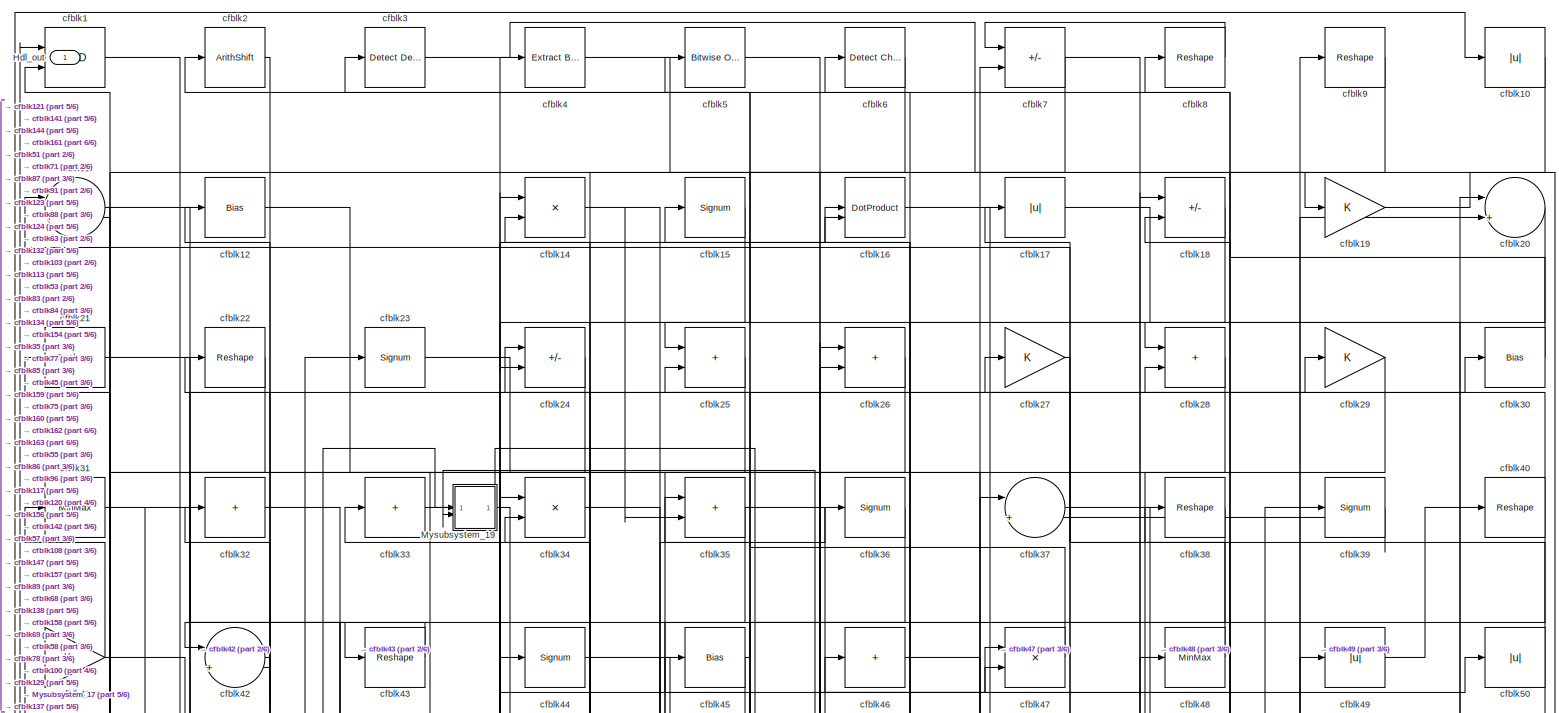
[diagram: root canvas - part 1/6, full width, top band]
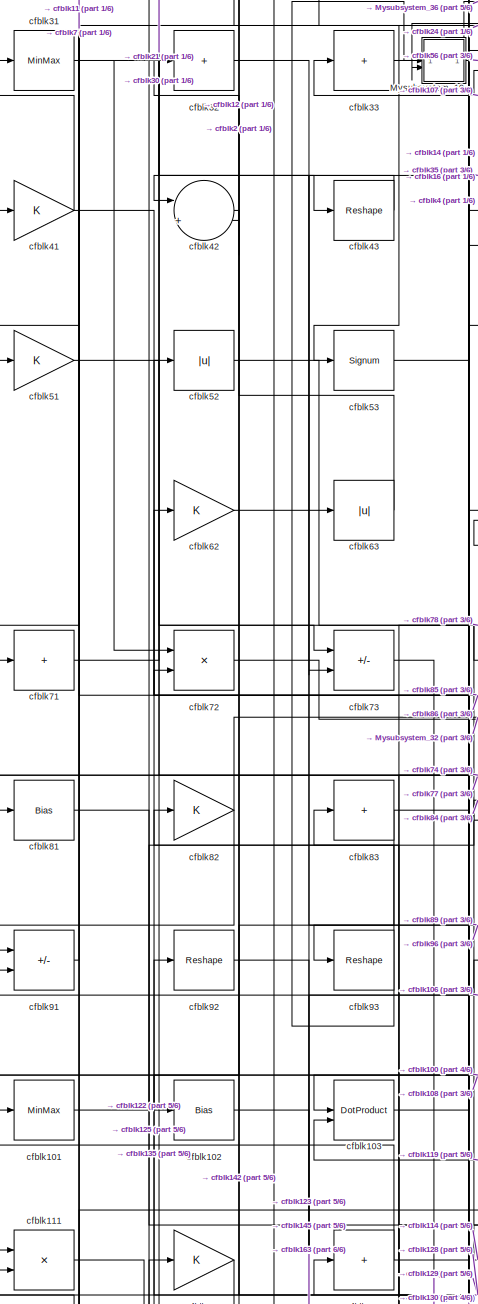
[diagram: root canvas - part 2/6, middle left region]
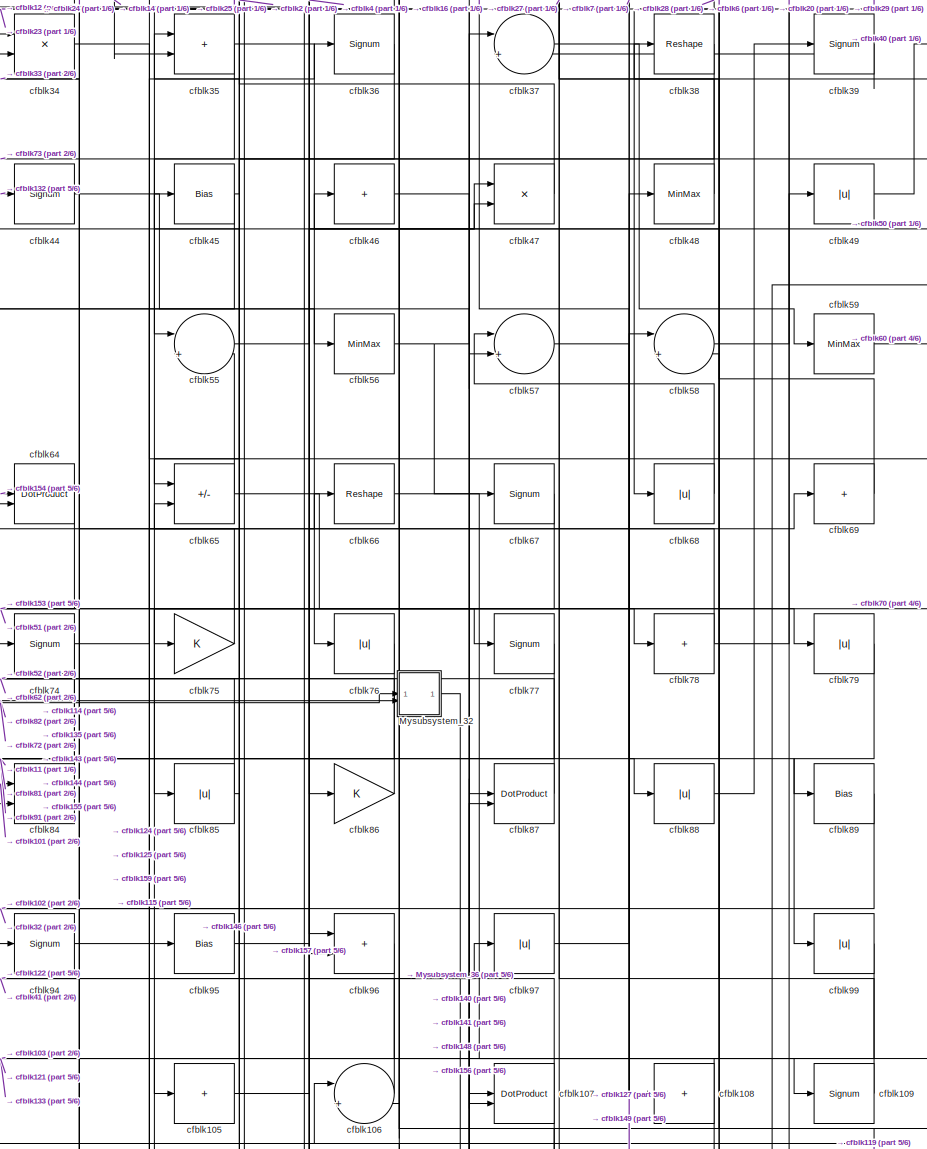
[diagram: root canvas - part 3/6, central region]
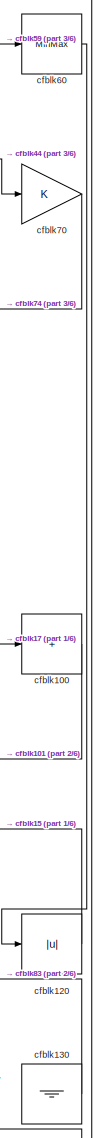
[diagram: root canvas - part 4/6, middle right region]
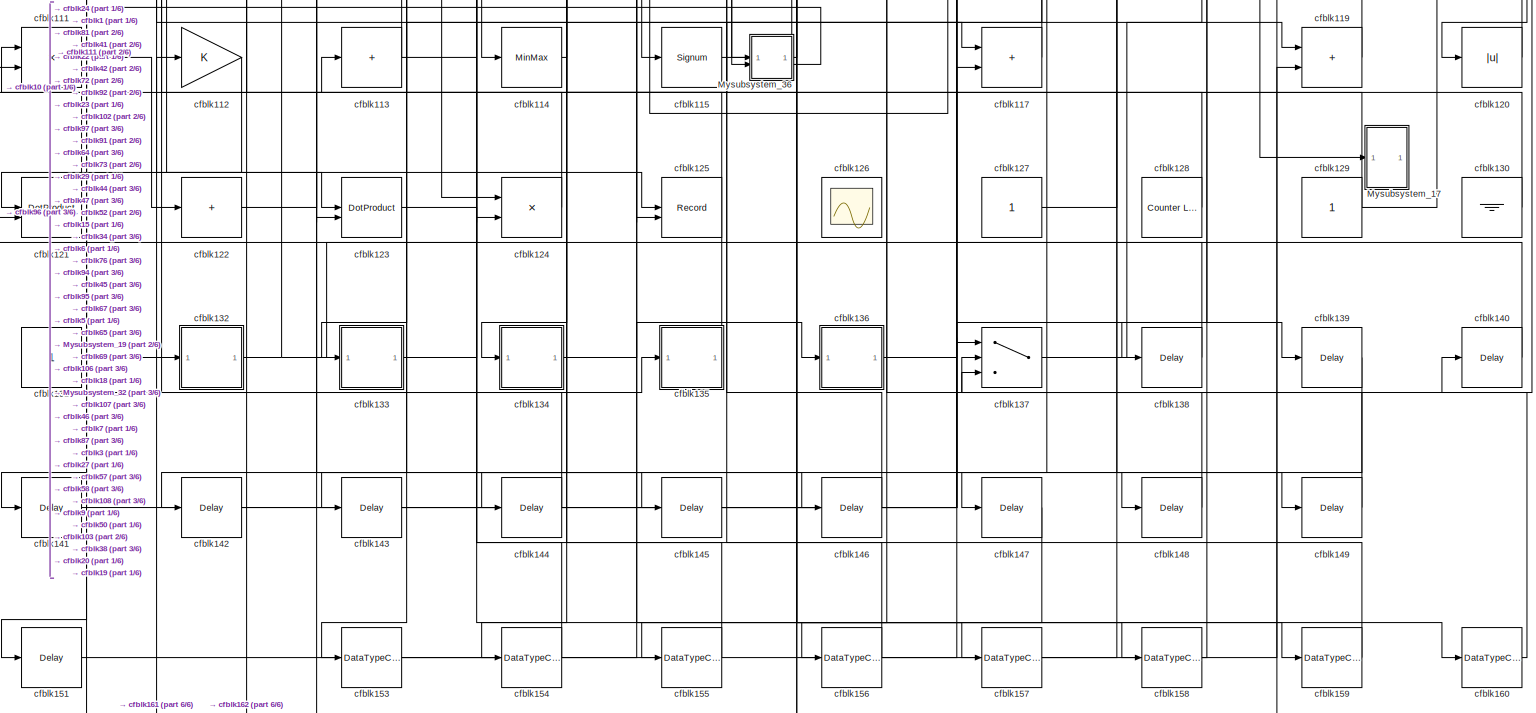
[diagram: root canvas - part 5/6, full width, bottom band]
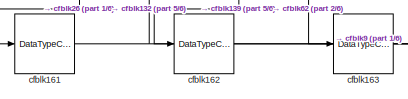
[diagram: root canvas - part 6/6, bottom left region]
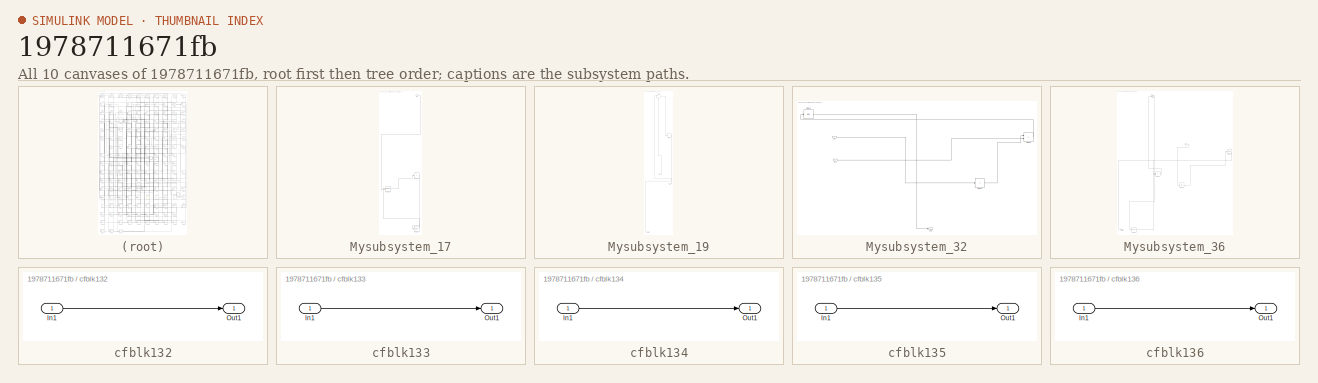
[diagram: thumbnail index - all 10 canvases of the model, root first then tree order]
MODEL slx_1978711671fb
KIND model
CONFIG AbsTol = auto
CONFIG EnableMultiTasking = off
CONFIG FixedStep = auto
CONFIG MaxStep = auto
CONFIG MinStep = auto
CONFIG RelTol = 1e-3
CONFIG SampleTimeConstraint = Unconstrained
CONFIG SolverName = VariableStepAuto
CONFIG StartTime = 0.0
CONFIG StopTime = 10.0
BLOCK [Outport] Hdl_out
  OutDataTypeStr = uint8
BLOCK [SubSystem] Mysubsystem_17
  RTWFcnName = Mysubsystem_17
  RTWFcnNameOpts = User specified
  RTWFileNameOpts = Use function name
  RTWSystemCode = Reusable function
  TreatAsAtomicUnit = on
BLOCK [Inport] Mysubsystem_17/In1
BLOCK [Sum] Mysubsystem_17/cfblk110
  IconShape = rectangular
  Inputs = +
BLOCK [DotProduct] Mysubsystem_17/cfblk118
  OutDataTypeStr = Inherit: Inherit via internal rule
BLOCK [Delay] Mysubsystem_17/cfblk150
  InputPortMap = u0
  SampleTime = 1
BLOCK [SubSystem] Mysubsystem_19
  RTWFcnName = Mysubsystem_19
  RTWFcnNameOpts = User specified
  RTWFileNameOpts = Use function name
  RTWSystemCode = Reusable function
  TreatAsAtomicUnit = on
BLOCK [Inport] Mysubsystem_19/In1
BLOCK [Inport] Mysubsystem_19/In2
  Port = 2
BLOCK [Outport] Mysubsystem_19/Out1
BLOCK [Sum] Mysubsystem_19/cfblk13
  Inputs = |++
BLOCK [Sum] Mysubsystem_19/cfblk54
  IconShape = rectangular
  Inputs = +
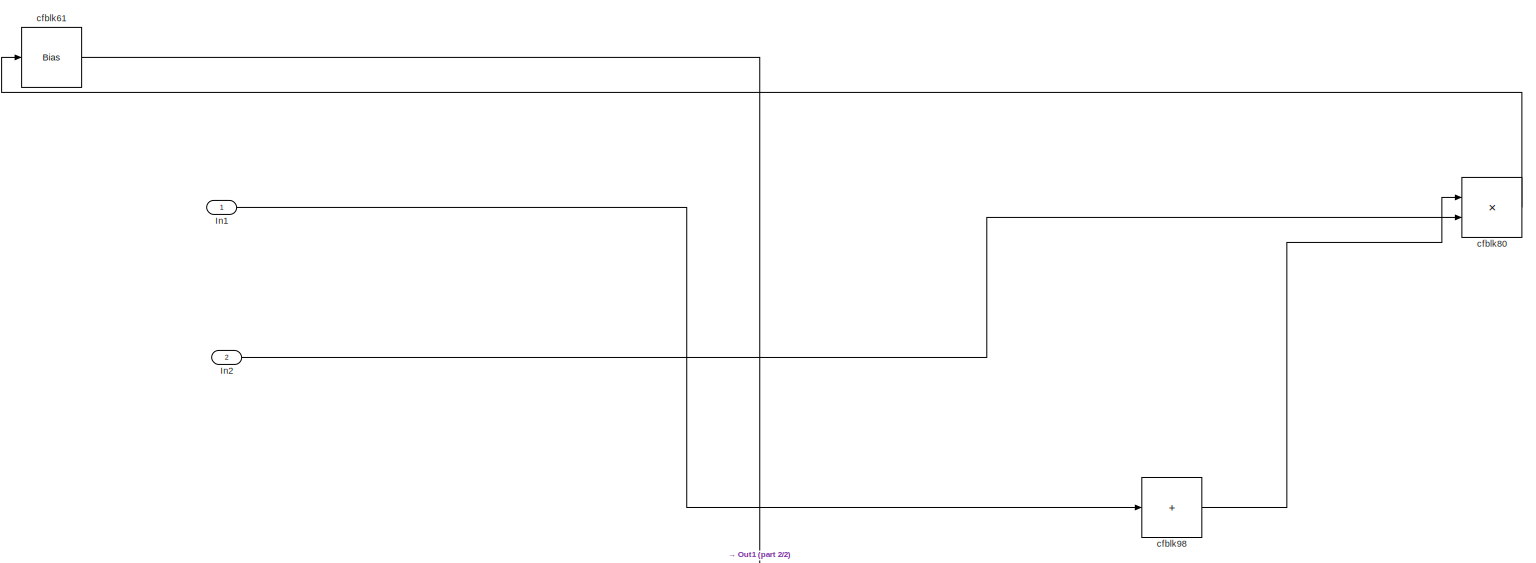
[diagram: Mysubsystem_32 - part 1/2, full width, middle band]
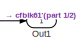
[diagram: Mysubsystem_32 - part 2/2, bottom center region]
BLOCK [SubSystem] Mysubsystem_32
  RTWFcnName = Mysubsystem_32
  RTWFcnNameOpts = User specified
  RTWFileNameOpts = Use function name
  RTWSystemCode = Reusable function
  TreatAsAtomicUnit = on
BLOCK [Inport] Mysubsystem_32/In1
BLOCK [Inport] Mysubsystem_32/In2
  Port = 2
BLOCK [Outport] Mysubsystem_32/Out1
BLOCK [Bias] Mysubsystem_32/cfblk61
  Bias = 0.0
  SaturateOnIntegerOverflow = off
BLOCK [Product] Mysubsystem_32/cfblk80
  Inputs = */
  RndMeth = Zero
  SaturateOnIntegerOverflow = on
BLOCK [Sum] Mysubsystem_32/cfblk98
  IconShape = rectangular
  Inputs = +
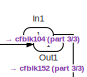
[diagram: Mysubsystem_36 - part 1/3, top left region]
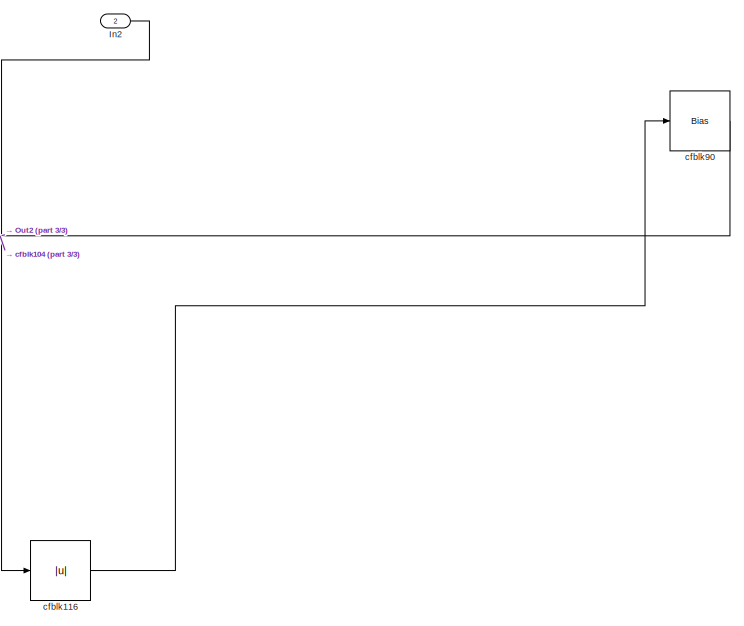
[diagram: Mysubsystem_36 - part 2/3, middle right region]
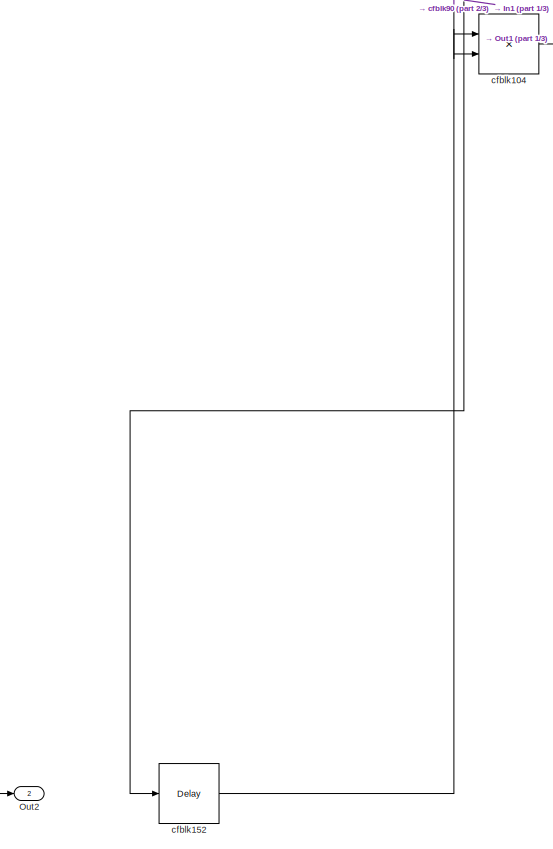
[diagram: Mysubsystem_36 - part 3/3, bottom left region]
BLOCK [SubSystem] Mysubsystem_36
  RTWFcnName = Mysubsystem_36
  RTWFcnNameOpts = User specified
  RTWFileNameOpts = Use function name
  RTWSystemCode = Reusable function
  TreatAsAtomicUnit = on
BLOCK [Inport] Mysubsystem_36/In1
BLOCK [Inport] Mysubsystem_36/In2
  Port = 2
BLOCK [Outport] Mysubsystem_36/Out1
BLOCK [Outport] Mysubsystem_36/Out2
  Port = 2
BLOCK [Product] Mysubsystem_36/cfblk104
  Inputs = */
  RndMeth = Zero
  SaturateOnIntegerOverflow = on
BLOCK [Abs] Mysubsystem_36/cfblk116
  SaturateOnIntegerOverflow = off
BLOCK [Delay] Mysubsystem_36/cfblk152
  InputPortMap = u0
  SampleTime = 1
BLOCK [Bias] Mysubsystem_36/cfblk90
  Bias = 0.0
  SaturateOnIntegerOverflow = off
BLOCK [Logic] cfblk1
  AllPortsSameDT = off
  OutDataTypeStr = boolean
BLOCK [Abs] cfblk10
  OutDataTypeStr = uint8
  SaturateOnIntegerOverflow = off
BLOCK [Sum] cfblk100
  IconShape = rectangular
  Inputs = +
  OutDataTypeStr = uint8
BLOCK [MinMax] cfblk101
  OutDataTypeStr = uint8
BLOCK [Bias] cfblk102
  Bias = 0.0
  SaturateOnIntegerOverflow = off
BLOCK [DotProduct] cfblk103
  OutDataTypeStr = uint8
BLOCK [Sum] cfblk105
  IconShape = rectangular
  Inputs = +
  OutDataTypeStr = uint8
BLOCK [Sum] cfblk106
  Inputs = |++
  OutDataTypeStr = uint8
BLOCK [DotProduct] cfblk107
  OutDataTypeStr = uint8
BLOCK [Sum] cfblk108
  IconShape = rectangular
  Inputs = +
  OutDataTypeStr = uint8
BLOCK [Signum] cfblk109
BLOCK [Sum] cfblk11
  Inputs = |++
  OutDataTypeStr = uint8
BLOCK [Product] cfblk111
  Inputs = */
  OutDataTypeStr = uint8
  RndMeth = Zero
  SaturateOnIntegerOverflow = on
BLOCK [Gain] cfblk112
  OutDataTypeStr = uint8
BLOCK [Sum] cfblk113
  IconShape = rectangular
  Inputs = +
  OutDataTypeStr = uint8
BLOCK [MinMax] cfblk114
  OutDataTypeStr = uint8
BLOCK [Signum] cfblk115
BLOCK [Sum] cfblk117
  IconShape = rectangular
  OutDataTypeStr = uint8
BLOCK [Sum] cfblk119
  IconShape = rectangular
  OutDataTypeStr = uint8
BLOCK [Bias] cfblk12
  Bias = 0.0
  SaturateOnIntegerOverflow = off
BLOCK [Abs] cfblk120
  OutDataTypeStr = uint8
  SaturateOnIntegerOverflow = off
BLOCK [DotProduct] cfblk121
  OutDataTypeStr = uint8
BLOCK [Sum] cfblk122
  IconShape = rectangular
  Inputs = +
  OutDataTypeStr = uint8
BLOCK [DotProduct] cfblk123
  OutDataTypeStr = uint8
BLOCK [Product] cfblk124
  Inputs = */
  OutDataTypeStr = uint8
  RndMeth = Zero
  SaturateOnIntegerOverflow = on
BLOCK [Record] cfblk125
  CompatibilityTag = XY
  FileSettingsInternal = {"entries":[{"content":{"excelSettings":{"content":{},"type":"Streamout.ExcelSettings"}},"type":"Streamout.FileSettingStorage","uuid":""}],"packageUris":["http:\/\/schema.mathworks.com\/mf0\/streamout_blocks\/R2020a"],"version":"1.0"}
  Layout = [1 1]
  SignalsInternal = {"entries":[{"content":{"signals":[{"content":{"blockPath":[],"dimensions":[1],"domain":"","lineColor":"#a2142f","plots":[1],"port":1,"signalID":36223,"signalName":"cfblk81"},"type":"RecordBlkView.Signal","uuid":""},{"content":{"blockPath":[],"dimensions":[1],"domain":"","lineColor":"#139fff","plots":[1],"port":2,"signalID":36226,"signalName":"cfblk45"},"type":"RecordBlkView.Signal","uuid":""}]},"...<+142ch>
  VisualizationBindings = {"xyplotplugin":{"info":[{"series":[{"bindingParametersList":[{"parameter":"X-Axis","signalID":36223,"signalName":"cfblk81"},{"parameter":"Y-Axis","signalID":36226,"signalName":"cfblk45"}],"seriesID":25196}],"subplotID":1}]}}
  st = -1
BLOCK [Scope] cfblk126
  Floating = on
  NumInputPorts = 1
  ScopeSpecificationString = Simulink.scopes.TimeScopeBlockCfg('CurrentConfiguration', extmgr.ConfigurationSet(extmgr.Configuration('Core','General UI',true,'FigureColor',[0.156862745098039 0.156862745098039 0.156862745098039]),extmgr.Configuration('Core','Source UI',true),extmgr.Configuration('Sources','WiredSimulink',true,'DataLoggingVariableName','ScopeData1','DataLoggingSaveFormat','StructureWithTime','DataLoggingLimitDat...<+2713ch>
BLOCK [Constant] cfblk127
  OutDataTypeStr = uint8
  SampleTime = -1
BLOCK [Reference] cfblk128  REF=hdlsllib/Sources/Counter
Limited
  SourceBlock = hdlsllib/Sources/Counter\nLimited
  SourceType = Counter Limited
BLOCK [Constant] cfblk129
  OutDataTypeStr = uint8
  SampleTime = -1
BLOCK [Ground] cfblk130
BLOCK [Constant] cfblk131
  OutDataTypeStr = uint8
  SampleTime = -1
BLOCK [SubSystem] cfblk132
  LibrarySourceBlock = hdlsllib/Ports &\nSubsystems/Subsystem
BLOCK [Inport] cfblk132/In1
BLOCK [Outport] cfblk132/Out1
BLOCK [SubSystem] cfblk133
  LibrarySourceBlock = hdlsllib/Ports &\nSubsystems/Subsystem
BLOCK [Inport] cfblk133/In1
BLOCK [Outport] cfblk133/Out1
BLOCK [SubSystem] cfblk134
  LibrarySourceBlock = hdlsllib/Ports &\nSubsystems/Subsystem
BLOCK [Inport] cfblk134/In1
BLOCK [Outport] cfblk134/Out1
BLOCK [SubSystem] cfblk135
  LibrarySourceBlock = hdlsllib/Ports &\nSubsystems/Subsystem
BLOCK [Inport] cfblk135/In1
BLOCK [Outport] cfblk135/Out1
BLOCK [SubSystem] cfblk136
  LibrarySourceBlock = hdlsllib/Ports &\nSubsystems/Subsystem
BLOCK [Inport] cfblk136/In1
BLOCK [Outport] cfblk136/Out1
BLOCK [Switch] cfblk137
  InputSameDT = off
  OutDataTypeStr = uint8
  SaturateOnIntegerOverflow = off
BLOCK [Delay] cfblk138
  InputPortMap = u0
  SampleTime = 1
BLOCK [Delay] cfblk139
  InputPortMap = u0
  SampleTime = 1
BLOCK [Product] cfblk14
  Inputs = */
  OutDataTypeStr = uint8
  RndMeth = Zero
  SaturateOnIntegerOverflow = on
BLOCK [Delay] cfblk140
  InputPortMap = u0
  SampleTime = 1
BLOCK [Delay] cfblk141
  InputPortMap = u0
  SampleTime = 1
BLOCK [Delay] cfblk142
  InputPortMap = u0
  SampleTime = 1
BLOCK [Delay] cfblk143
  InputPortMap = u0
  SampleTime = 1
BLOCK [Delay] cfblk144
  InputPortMap = u0
  SampleTime = 1
BLOCK [Delay] cfblk145
  InputPortMap = u0
  SampleTime = 1
BLOCK [Delay] cfblk146
  InputPortMap = u0
  SampleTime = 1
BLOCK [Delay] cfblk147
  InputPortMap = u0
  SampleTime = 1
BLOCK [Delay] cfblk148
  InputPortMap = u0
  SampleTime = 1
BLOCK [Delay] cfblk149
  InputPortMap = u0
  SampleTime = 1
BLOCK [Signum] cfblk15
BLOCK [Delay] cfblk151
  InputPortMap = u0
  SampleTime = 1
BLOCK [DataTypeConversion] cfblk153
  OutDataTypeStr = uint8
  RndMeth = Floor
  SaturateOnIntegerOverflow = off
BLOCK [DataTypeConversion] cfblk154
  OutDataTypeStr = uint8
  RndMeth = Floor
  SaturateOnIntegerOverflow = off
BLOCK [DataTypeConversion] cfblk155
  OutDataTypeStr = uint8
  RndMeth = Floor
  SaturateOnIntegerOverflow = off
BLOCK [DataTypeConversion] cfblk156
  OutDataTypeStr = uint8
  RndMeth = Floor
  SaturateOnIntegerOverflow = off
BLOCK [DataTypeConversion] cfblk157
  OutDataTypeStr = uint8
  RndMeth = Floor
  SaturateOnIntegerOverflow = off
BLOCK [DataTypeConversion] cfblk158
  OutDataTypeStr = uint8
  RndMeth = Floor
  SaturateOnIntegerOverflow = off
BLOCK [DataTypeConversion] cfblk159
  OutDataTypeStr = uint8
  RndMeth = Floor
  SaturateOnIntegerOverflow = off
BLOCK [DotProduct] cfblk16
  OutDataTypeStr = uint8
BLOCK [DataTypeConversion] cfblk160
  OutDataTypeStr = uint8
  RndMeth = Floor
  SaturateOnIntegerOverflow = off
BLOCK [DataTypeConversion] cfblk161
  OutDataTypeStr = uint8
  RndMeth = Floor
  SaturateOnIntegerOverflow = off
BLOCK [DataTypeConversion] cfblk162
  OutDataTypeStr = uint8
  RndMeth = Floor
  SaturateOnIntegerOverflow = off
BLOCK [DataTypeConversion] cfblk163
  OutDataTypeStr = uint8
  RndMeth = Floor
  SaturateOnIntegerOverflow = off
BLOCK [Abs] cfblk17
  OutDataTypeStr = uint8
  SaturateOnIntegerOverflow = off
BLOCK [Sum] cfblk18
  IconShape = rectangular
  Inputs = +-
  OutDataTypeStr = uint8
BLOCK [Gain] cfblk19
  OutDataTypeStr = uint8
BLOCK [ArithShift] cfblk2
  BitShiftNumber = 8
  InputPortMap = u0
BLOCK [Sum] cfblk20
  Inputs = |++
  OutDataTypeStr = uint8
BLOCK [Reshape] cfblk21
BLOCK [Reshape] cfblk22
BLOCK [Signum] cfblk23
BLOCK [Sum] cfblk24
  IconShape = rectangular
  Inputs = +-
  OutDataTypeStr = uint8
BLOCK [Sum] cfblk25
  IconShape = rectangular
  OutDataTypeStr = uint8
BLOCK [Sum] cfblk26
  IconShape = rectangular
  OutDataTypeStr = uint8
BLOCK [Gain] cfblk27
  OutDataTypeStr = uint8
BLOCK [Sum] cfblk28
  IconShape = rectangular
  OutDataTypeStr = uint8
BLOCK [Gain] cfblk29
  OutDataTypeStr = uint8
BLOCK [Reference] cfblk3  REF=simulink/Logic and Bit
Operations/Detect
Decrease
  LibrarySourceBlock = hdlsllib/Logic and Bit\nOperations/Detect\nDecrease
  SourceBlock = simulink/Logic and Bit\nOperations/Detect\nDecrease
  SourceType = Detect Decrease
BLOCK [Bias] cfblk30
  Bias = 0.0
  SaturateOnIntegerOverflow = off
BLOCK [MinMax] cfblk31
  OutDataTypeStr = uint8
BLOCK [Sum] cfblk32
  IconShape = rectangular
  Inputs = +
  OutDataTypeStr = uint8
BLOCK [Sum] cfblk33
  IconShape = rectangular
  Inputs = +
  OutDataTypeStr = uint8
BLOCK [Product] cfblk34
  Inputs = */
  OutDataTypeStr = uint8
  RndMeth = Zero
  SaturateOnIntegerOverflow = on
BLOCK [Sum] cfblk35
  IconShape = rectangular
  OutDataTypeStr = uint8
BLOCK [Signum] cfblk36
BLOCK [Sum] cfblk37
  Inputs = |++
  OutDataTypeStr = uint8
BLOCK [Reshape] cfblk38
BLOCK [Signum] cfblk39
BLOCK [Reference] cfblk4  REF=simulink/Logic and Bit
Operations/Extract Bits
  LibrarySourceBlock = hdlsllib/Logic and Bit\nOperations/Extract Bits
  SourceBlock = simulink/Logic and Bit\nOperations/Extract Bits
  SourceType = Extract Bits
BLOCK [Reshape] cfblk40
BLOCK [Gain] cfblk41
  OutDataTypeStr = uint8
BLOCK [Sum] cfblk42
  Inputs = |++
  OutDataTypeStr = uint8
BLOCK [Reshape] cfblk43
BLOCK [Signum] cfblk44
BLOCK [Bias] cfblk45
  Bias = 0.0
  SaturateOnIntegerOverflow = off
BLOCK [Sum] cfblk46
  IconShape = rectangular
  Inputs = +
  OutDataTypeStr = uint8
BLOCK [Product] cfblk47
  Inputs = */
  OutDataTypeStr = uint8
  RndMeth = Zero
  SaturateOnIntegerOverflow = on
BLOCK [MinMax] cfblk48
  OutDataTypeStr = uint8
BLOCK [Abs] cfblk49
  OutDataTypeStr = uint8
  SaturateOnIntegerOverflow = off
BLOCK [Reference] cfblk5  REF=simulink/Logic and Bit
Operations/Bitwise
Operator
  LibrarySourceBlock = hdlsllib/Logic and Bit\nOperations/Bitwise\nOperator
  SourceBlock = simulink/Logic and Bit\nOperations/Bitwise\nOperator
  SourceType = Bitwise Operator
BLOCK [Abs] cfblk50
  OutDataTypeStr = uint8
  SaturateOnIntegerOverflow = off
BLOCK [Gain] cfblk51
  OutDataTypeStr = uint8
BLOCK [Abs] cfblk52
  OutDataTypeStr = uint8
  SaturateOnIntegerOverflow = off
BLOCK [Signum] cfblk53
BLOCK [Sum] cfblk55
  Inputs = |++
  OutDataTypeStr = uint8
BLOCK [MinMax] cfblk56
  OutDataTypeStr = uint8
BLOCK [Sum] cfblk57
  Inputs = |++
  OutDataTypeStr = uint8
BLOCK [Sum] cfblk58
  Inputs = |++
  OutDataTypeStr = uint8
BLOCK [MinMax] cfblk59
  OutDataTypeStr = uint8
BLOCK [Reference] cfblk6  REF=simulink/Logic and Bit
Operations/Detect
Change
  LibrarySourceBlock = hdlsllib/Logic and Bit\nOperations/Detect\nChange
  SourceBlock = simulink/Logic and Bit\nOperations/Detect\nChange
  SourceType = Detect Change
BLOCK [MinMax] cfblk60
  OutDataTypeStr = uint8
BLOCK [Gain] cfblk62
  OutDataTypeStr = uint8
BLOCK [Abs] cfblk63
  OutDataTypeStr = uint8
  SaturateOnIntegerOverflow = off
BLOCK [DotProduct] cfblk64
  OutDataTypeStr = uint8
BLOCK [Sum] cfblk65
  IconShape = rectangular
  Inputs = +-
  OutDataTypeStr = uint8
BLOCK [Reshape] cfblk66
BLOCK [Signum] cfblk67
BLOCK [Abs] cfblk68
  OutDataTypeStr = uint8
  SaturateOnIntegerOverflow = off
BLOCK [Sum] cfblk69
  IconShape = rectangular
  Inputs = +
  OutDataTypeStr = uint8
BLOCK [Sum] cfblk7
  IconShape = rectangular
  Inputs = +-
  OutDataTypeStr = uint8
BLOCK [Gain] cfblk70
  OutDataTypeStr = uint8
BLOCK [Sum] cfblk71
  IconShape = rectangular
  Inputs = +
  OutDataTypeStr = uint8
BLOCK [Product] cfblk72
  Inputs = */
  OutDataTypeStr = uint8
  RndMeth = Zero
  SaturateOnIntegerOverflow = on
BLOCK [Sum] cfblk73
  IconShape = rectangular
  Inputs = +-
  OutDataTypeStr = uint8
BLOCK [Signum] cfblk74
BLOCK [Gain] cfblk75
  OutDataTypeStr = uint8
BLOCK [Abs] cfblk76
  OutDataTypeStr = uint8
  SaturateOnIntegerOverflow = off
BLOCK [Signum] cfblk77
BLOCK [Sum] cfblk78
  IconShape = rectangular
  Inputs = +
  OutDataTypeStr = uint8
BLOCK [Abs] cfblk79
  OutDataTypeStr = uint8
  SaturateOnIntegerOverflow = off
BLOCK [Reshape] cfblk8
BLOCK [Bias] cfblk81
  Bias = 0.0
  SaturateOnIntegerOverflow = off
BLOCK [Gain] cfblk82
  OutDataTypeStr = uint8
BLOCK [Sum] cfblk83
  IconShape = rectangular
  Inputs = +
  OutDataTypeStr = uint8
BLOCK [Sum] cfblk84
  IconShape = rectangular
  OutDataTypeStr = uint8
BLOCK [Abs] cfblk85
  OutDataTypeStr = uint8
  SaturateOnIntegerOverflow = off
BLOCK [Gain] cfblk86
  OutDataTypeStr = uint8
BLOCK [DotProduct] cfblk87
  OutDataTypeStr = uint8
BLOCK [Abs] cfblk88
  OutDataTypeStr = uint8
  SaturateOnIntegerOverflow = off
BLOCK [Bias] cfblk89
  Bias = 0.0
  SaturateOnIntegerOverflow = off
BLOCK [Reshape] cfblk9
BLOCK [Sum] cfblk91
  IconShape = rectangular
  Inputs = +-
  OutDataTypeStr = uint8
BLOCK [Reshape] cfblk92
BLOCK [Reshape] cfblk93
BLOCK [Signum] cfblk94
BLOCK [Bias] cfblk95
  Bias = 0.0
  SaturateOnIntegerOverflow = off
BLOCK [Sum] cfblk96
  IconShape = rectangular
  OutDataTypeStr = uint8
BLOCK [Abs] cfblk97
  OutDataTypeStr = uint8
  SaturateOnIntegerOverflow = off
BLOCK [Abs] cfblk99
  OutDataTypeStr = uint8
  SaturateOnIntegerOverflow = off
LINE Mysubsystem_17/In1:1 -> Mysubsystem_17/cfblk118:2
LINE Mysubsystem_17/cfblk110:1 -> Mysubsystem_17/cfblk150:1
LINE Mysubsystem_17/cfblk118:1 -> Mysubsystem_17/cfblk110:1
LINE Mysubsystem_17/cfblk150:1 -> Mysubsystem_17/cfblk118:1
LINE Mysubsystem_19/In1:1 -> Mysubsystem_19/cfblk13:2
LINE Mysubsystem_19/In2:1 -> Mysubsystem_19/cfblk13:1
LINE Mysubsystem_19/cfblk13:1 -> Mysubsystem_19/cfblk54:1
LINE Mysubsystem_19/cfblk54:1 -> Mysubsystem_19/Out1:1
LINE Mysubsystem_19:1 -> Mysubsystem_36:1
LINE Mysubsystem_32/In1:1 -> Mysubsystem_32/cfblk98:1
LINE Mysubsystem_32/In2:1 -> Mysubsystem_32/cfblk80:2
LINE Mysubsystem_32/cfblk61:1 -> Mysubsystem_32/Out1:1
LINE Mysubsystem_32/cfblk80:1 -> Mysubsystem_32/cfblk61:1
LINE Mysubsystem_32/cfblk98:1 -> Mysubsystem_32/cfblk80:1
LINE Mysubsystem_32:1 -> Mysubsystem_36:2
LINE Mysubsystem_36/In1:1 -> Mysubsystem_36/cfblk152:1
LINE Mysubsystem_36/In2:1 -> Mysubsystem_36/cfblk116:1
LINE Mysubsystem_36/cfblk104:1 -> Mysubsystem_36/Out1:1
LINE Mysubsystem_36/cfblk116:1 -> Mysubsystem_36/cfblk90:1
LINE Mysubsystem_36/cfblk152:1 -> Mysubsystem_36/cfblk104:1
NET Mysubsystem_36/cfblk90:1 -> Mysubsystem_36/Out2:1, Mysubsystem_36/cfblk104:2
LINE Mysubsystem_36:1 -> Mysubsystem_19:2
LINE Mysubsystem_36:2 -> cfblk151:1
LINE cfblk100:1 -> cfblk101:1
LINE cfblk101:1 -> cfblk84:1
LINE cfblk102:1 -> cfblk123:2
LINE cfblk103:1 -> cfblk4:1
NET cfblk105:1 -> cfblk35:1, cfblk47:2
LINE cfblk106:1 -> cfblk41:1
NET cfblk107:1 -> cfblk33:1, cfblk45:1
NET cfblk108:1 -> cfblk103:1, cfblk133:1
NET cfblk109:1 -> cfblk57:1, cfblk58:2
LINE cfblk10:1 -> cfblk25:1
LINE cfblk111:1 -> cfblk122:1
LINE cfblk112:1 -> cfblk121:1
NET cfblk113:1 -> cfblk158:1, cfblk29:1, cfblk91:1
LINE cfblk114:1 -> cfblk34:2
LINE cfblk115:1 -> cfblk69:1
LINE cfblk117:1 -> cfblk3:1
NET cfblk119:1 -> cfblk103:2, cfblk38:1
NET cfblk11:1 -> cfblk71:1, cfblk88:1
LINE cfblk120:1 -> cfblk15:1
LINE cfblk121:1 -> cfblk10:1
LINE cfblk122:1 -> cfblk97:1
LINE cfblk123:1 -> cfblk146:1
NET cfblk124:1 -> cfblk22:1, cfblk92:1
LINE cfblk127:1 -> cfblk58:1
NET cfblk128:1 -> cfblk113:1, cfblk72:2
NET cfblk129:1 -> cfblk111:1, cfblk20:1
LINE cfblk12:1 -> cfblk57:2
LINE cfblk130:1 -> cfblk83:1
LINE cfblk131:1 -> cfblk112:1
LINE cfblk132/In1:1 -> cfblk132/Out1:1
NET cfblk132:1 -> cfblk23:1, cfblk44:1
LINE cfblk133/In1:1 -> cfblk133/Out1:1
LINE cfblk133:1 -> cfblk47:1
LINE cfblk134/In1:1 -> cfblk134/Out1:1
LINE cfblk134:1 -> cfblk136:1
LINE cfblk135/In1:1 -> cfblk135/Out1:1
LINE cfblk135:1 -> cfblk94:1
LINE cfblk136/In1:1 -> cfblk136/Out1:1
LINE cfblk136:1 -> cfblk139:1
LINE cfblk137:1 -> cfblk119:1
LINE cfblk138:1 -> cfblk1:1
LINE cfblk139:1 -> cfblk162:1
LINE cfblk140:1 -> cfblk107:1
LINE cfblk141:1 -> cfblk87:1
LINE cfblk142:1 -> cfblk7:2
LINE cfblk143:1 -> cfblk117:2
LINE cfblk144:1 -> cfblk1:2
LINE cfblk145:1 -> cfblk137:1
LINE cfblk146:1 -> cfblk65:2
LINE cfblk147:1 -> cfblk155:1
LINE cfblk148:1 -> cfblk137:3
LINE cfblk149:1 -> cfblk106:1
NET cfblk14:1 -> cfblk35:2, cfblk77:1
LINE cfblk151:1 -> cfblk119:2
LINE cfblk153:1 -> cfblk95:1
LINE cfblk154:1 -> cfblk64:1
LINE cfblk155:1 -> cfblk64:2
NET cfblk156:1 -> cfblk34:1, cfblk87:2
LINE cfblk157:1 -> cfblk18:1
LINE cfblk158:1 -> cfblk18:2
LINE cfblk159:1 -> cfblk5:1
LINE cfblk15:1 -> cfblk134:1
LINE cfblk160:1 -> cfblk140:1
NET cfblk161:1 -> cfblk132:1, cfblk9:1
LINE cfblk162:1 -> cfblk26:1
LINE cfblk163:1 -> cfblk26:2
LINE cfblk16:1 -> cfblk108:1
LINE cfblk17:1 -> cfblk100:1
LINE cfblk18:1 -> cfblk156:1
LINE cfblk19:1 -> cfblk137:2
LINE cfblk1:1 -> cfblk117:1
NET cfblk20:1 -> cfblk24:2, cfblk28:1
LINE cfblk21:1 -> cfblk43:1
LINE cfblk22:1 -> cfblk123:1
LINE cfblk23:1 -> cfblk86:1
NET cfblk24:1 -> cfblk141:1, cfblk53:1
LINE cfblk25:1 -> cfblk85:1
LINE cfblk26:1 -> cfblk161:1
LINE cfblk27:1 -> cfblk147:1
LINE cfblk28:1 -> cfblk68:1
LINE cfblk29:1 -> cfblk84:2
LINE cfblk2:1 -> cfblk42:2
LINE cfblk30:1 -> cfblk8:1
NET cfblk31:1 -> cfblk63:1, cfblk72:1
LINE cfblk32:1 -> cfblk96:2
LINE cfblk33:1 -> cfblk56:1
LINE cfblk34:1 -> cfblk159:1
NET cfblk35:1 -> cfblk73:2, cfblk76:1
LINE cfblk36:1 -> cfblk55:1
LINE cfblk37:1 -> cfblk59:1
LINE cfblk38:1 -> cfblk65:1
LINE cfblk39:1 -> cfblk37:2
LINE cfblk3:1 -> cfblk19:1
NET cfblk40:1 -> cfblk28:2, cfblk75:1
NET cfblk41:1 -> cfblk135:1, cfblk31:1
LINE cfblk42:1 -> cfblk142:1
LINE cfblk43:1 -> cfblk42:1
NET cfblk44:1 -> cfblk107:2, cfblk70:1
NET cfblk45:1 -> cfblk124:2, cfblk125:2, cfblk25:2
LINE cfblk46:1 -> cfblk148:1
LINE cfblk47:1 -> cfblk2:1
LINE cfblk48:1 -> cfblk11:1
LINE cfblk49:1 -> cfblk40:1
LINE cfblk4:1 -> cfblk96:1
NET cfblk50:1 -> Mysubsystem_17:1, cfblk17:1
LINE cfblk51:1 -> cfblk78:1
LINE cfblk52:1 -> cfblk114:1
LINE cfblk53:1 -> cfblk14:1
LINE cfblk55:1 -> cfblk50:1
NET cfblk56:1 -> cfblk37:1, cfblk67:1
LINE cfblk57:1 -> cfblk149:1
LINE cfblk58:1 -> cfblk20:2
LINE cfblk59:1 -> cfblk60:1
LINE cfblk5:1 -> cfblk160:1
LINE cfblk60:1 -> cfblk120:1
LINE cfblk62:1 -> cfblk163:1
LINE cfblk63:1 -> cfblk12:1
LINE cfblk64:1 -> cfblk153:1
NET cfblk65:1 -> cfblk55:2, cfblk79:1
LINE cfblk66:1 -> cfblk109:1
LINE cfblk67:1 -> cfblk115:1
LINE cfblk68:1 -> cfblk27:1
NET cfblk69:1 -> cfblk46:1, cfblk6:1
LINE cfblk6:1 -> cfblk154:1
LINE cfblk70:1 -> cfblk74:1
NET cfblk71:1 -> cfblk30:1, cfblk73:1
LINE cfblk72:1 -> Mysubsystem_32:1
LINE cfblk73:1 -> cfblk124:1
NET cfblk74:1 -> cfblk66:1, cfblk81:1
LINE cfblk75:1 -> cfblk24:1
NET cfblk76:1 -> cfblk143:1, cfblk144:1
LINE cfblk77:1 -> cfblk91:2
NET cfblk78:1 -> cfblk14:2, cfblk16:1, cfblk49:1
LINE cfblk79:1 -> cfblk99:1
NET cfblk7:1 -> cfblk51:1, cfblk89:1
LINE cfblk81:1 -> cfblk125:1
NET cfblk82:1 -> Mysubsystem_32:2, cfblk111:2
NET cfblk83:1 -> cfblk16:2, cfblk93:1
LINE cfblk84:1 -> cfblk62:1
NET cfblk85:1 -> cfblk105:1, cfblk52:1
LINE cfblk86:1 -> cfblk32:1
LINE cfblk87:1 -> cfblk11:2
LINE cfblk88:1 -> cfblk39:1
LINE cfblk89:1 -> cfblk102:1
LINE cfblk8:1 -> cfblk7:1
LINE cfblk91:1 -> cfblk21:1
LINE cfblk92:1 -> cfblk145:1
NET cfblk93:1 -> Mysubsystem_19:1, cfblk82:1
LINE cfblk94:1 -> cfblk36:1
LINE cfblk95:1 -> cfblk157:1
LINE cfblk96:1 -> cfblk121:2
LINE cfblk97:1 -> cfblk48:1
LINE cfblk99:1 -> cfblk106:2
LINE cfblk9:1 -> cfblk138:1
note: NET lines group one-source signal fan-out (src -> all destinations, sorted); 1:1 wires keep LINE
